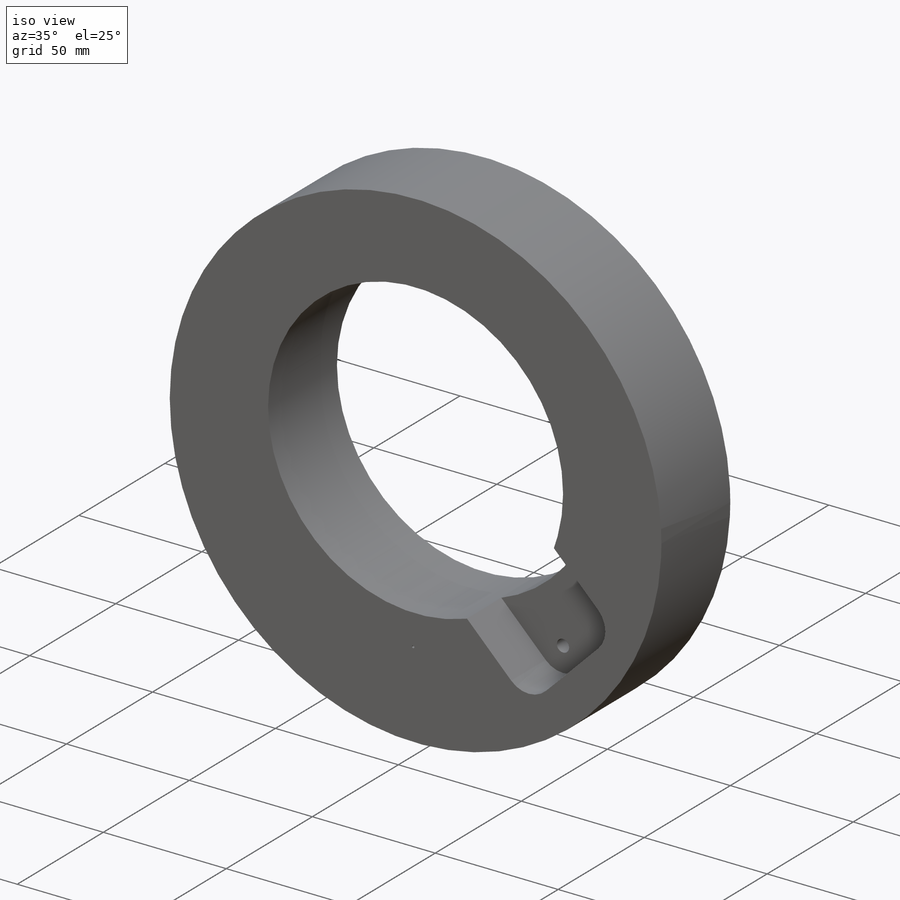
[diagram: iso view]
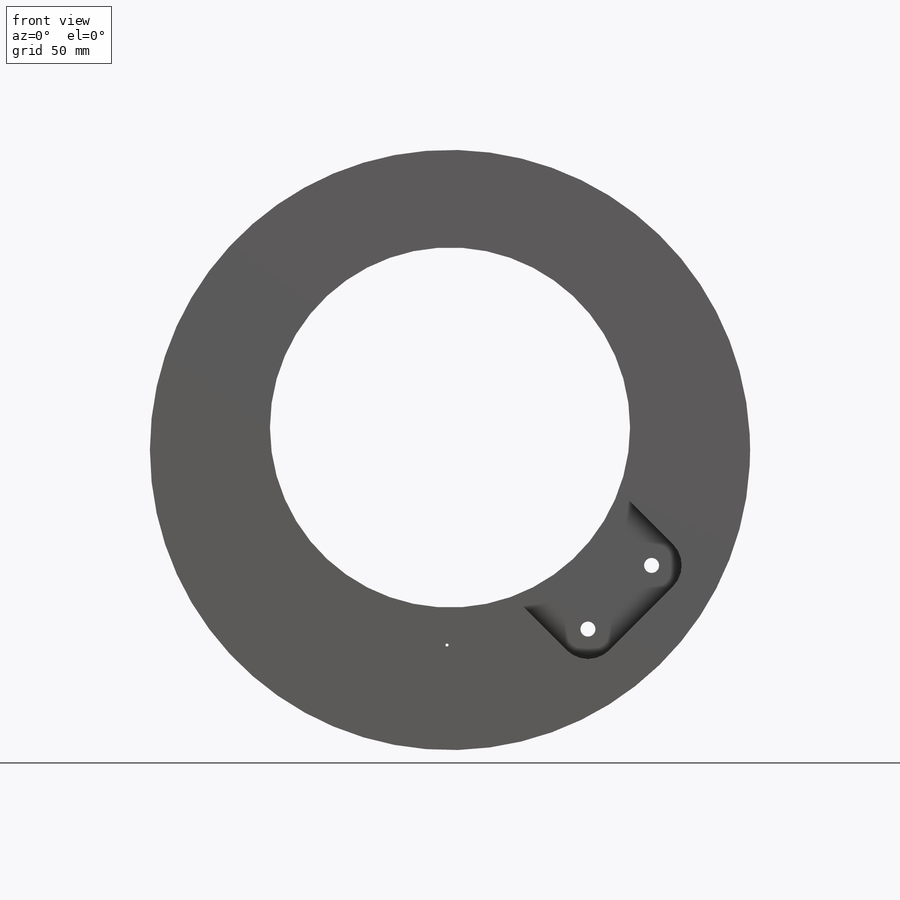
[diagram: front view]
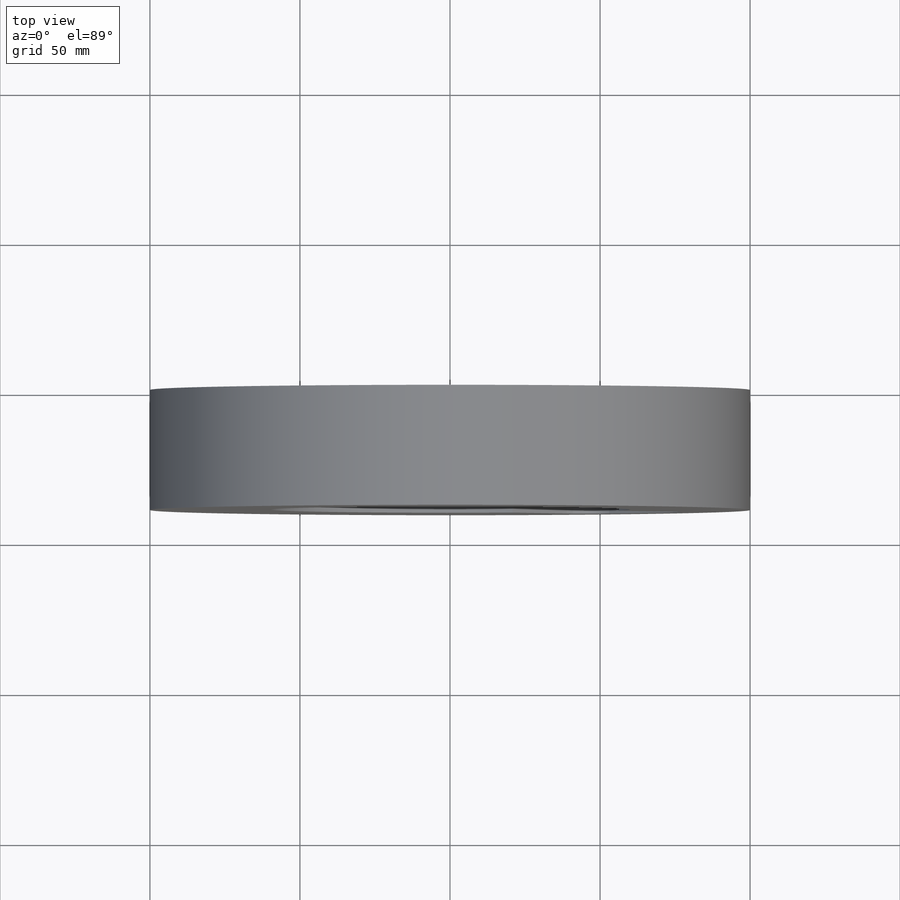
[diagram: top view]
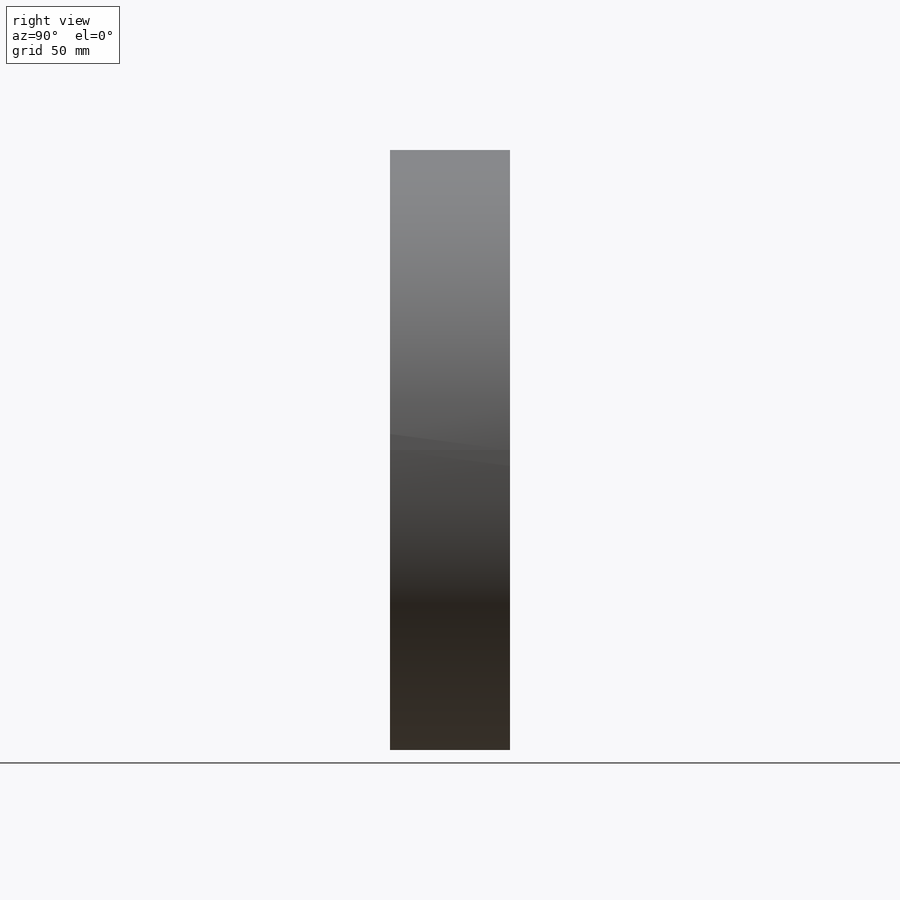
[diagram: right view]
SOLIDWORKS PART (.sldprt)
format: sldprt  version: not decoded by parser v0  size: 353,280 bytes
history: native  units: mm
features: sketch x5, plane x3, cut_extrude x2, thread x2, material x1, extrude x1, hole x1 (+10 scaffold rows collapsed)
feature tree (25):
  scaffold x10  (default folders/planes/origin — collapsed)
  material  "St37-2"
  plane  "Vorder"
  plane  "Drauf"
  plane  "Seite"
  sketch  "Skizze1"  dims[c1.D1=~198.040167mm c2.D1=200.0mm c2.D2=~122.717308mm c2.D3=120.0mm c3.D2=7.5mm]
  extrude  "Basis-Linear austragen"  Depth=40mm
  sketch  "Skizze2"  dims[c1.D4=10.0mm c1.D1=~17.574975mm c2.D1=135.0deg c2.D2=50.0mm c2.D3=90.0mm]
  cut_extrude  "Schnitt-Linear austragen1"  Depth=20mm
  sketch  "Skizze4"  dims[c1.TD=130.0mm c1.D2=~23.377444mm c1.BD=1.0mm c2.D2=75.0mm c2.WIN=15.0deg c2.AX=1.0mm]
  cut_extrude  "Schnitt-Linear austragen3"  [1 undecoded]
  hole  "M6x1.0 Gewindekernloch1"  Diameter=5mm Depth=20mm
  sketch  "Skizze7"
  sketch  "Skizze6"  dims[hole-wizard template sketch: 59 standard entries collapsed; hole parameters kept: c18.Bohrerdurchmesser=5.0mm c18.Bohrungstiefe=20.0mm]
  thread  "Gewindedarstellung1"  Diameter=6mm  [1 undecoded]
  thread  "Gewindedarstellung2"  Diameter=6mm  [1 undecoded]
decode coverage: 9 of 11 modeling features carry decoded parameters
note: ~ marks probable driven/reference dimensions
note: 3 parameter values undecoded
note: suppression state not decoded; provenance and decode notes live in map.json
